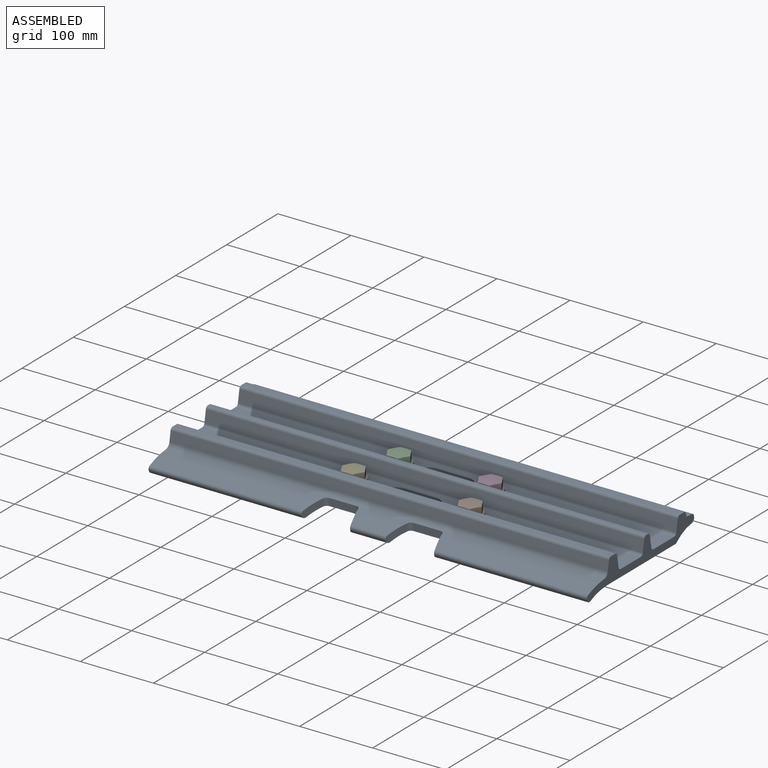
[diagram: assembled view]
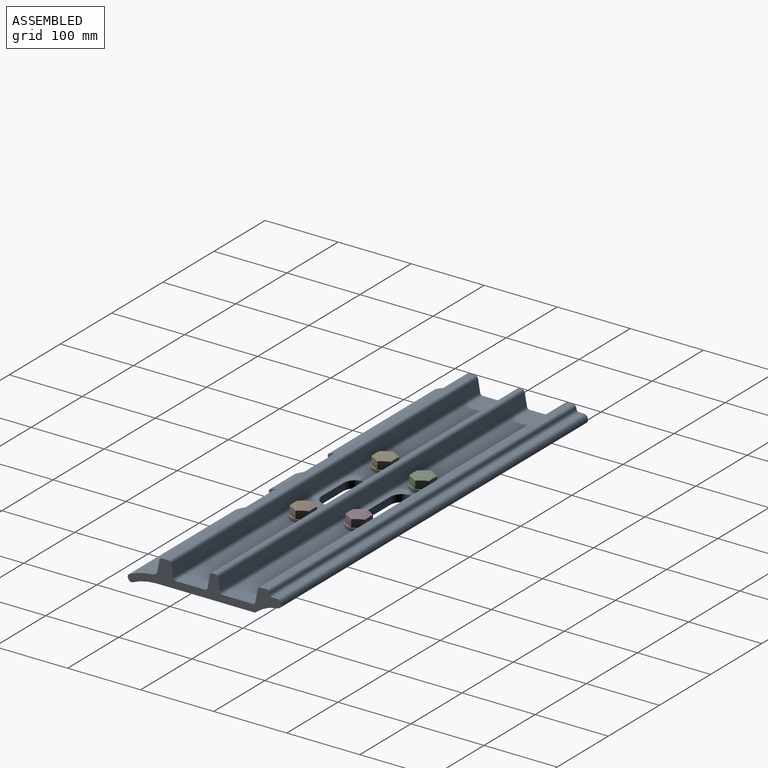
[diagram: assembled view, second angle]
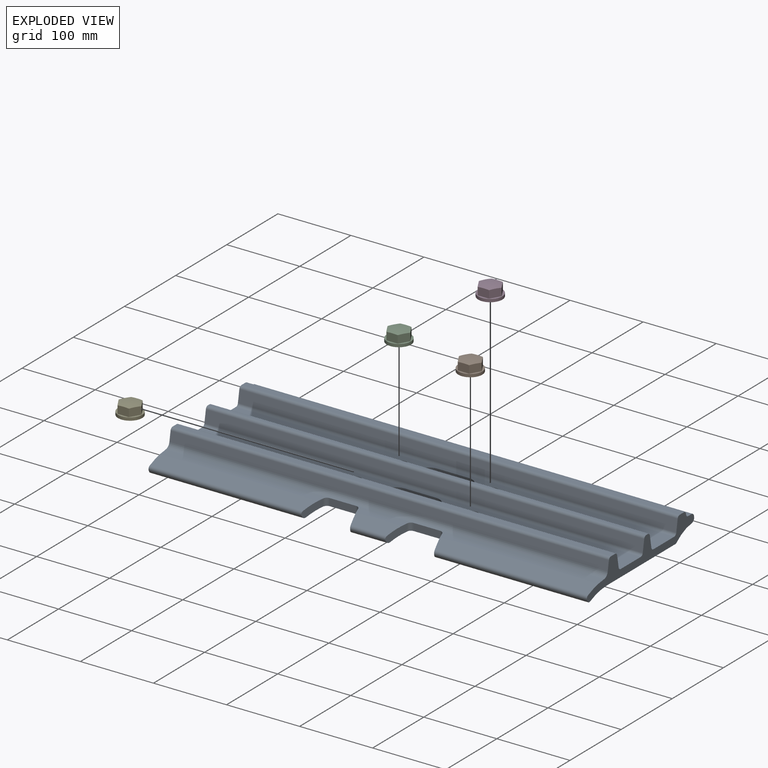
[diagram: exploded view]
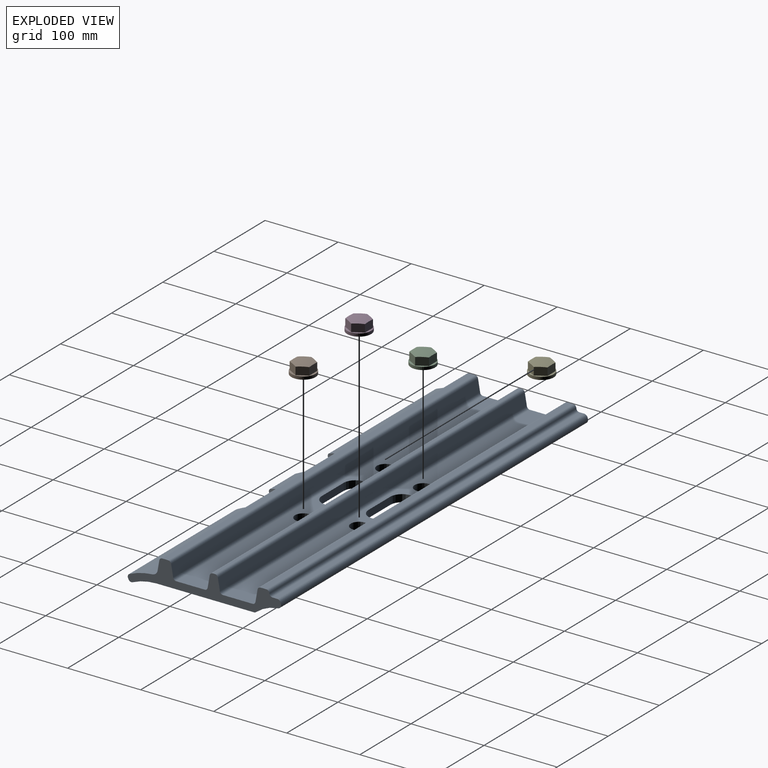
[diagram: exploded view, second angle]
ASSEMBLY  parts=5 mates=3
PART A: 67 faces, bbox 600x209.9x40.6 mm
  f0: cylinder r=90mm len=224.36mm, axis (-1,0,0), area 6968.3mm2, adj f4,f26,f28,f60,f63
  f1: cylinder r=90mm len=224.36mm, axis (-1,0,0), area 6968.3mm2, adj f5,f27,f28,f56,f62
  f2: plane 209.5x1.78mm, normal (0,-0.89,-0.46), area 419.2mm2, adj f4,f6,f26,f60
  f3: plane 209.5x1.78mm, normal (0,-0.89,-0.46), area 419.2mm2, adj f5,f7,f27,f56
  f4: cylinder r=4mm len=209.82mm, axis (-1,0,0), area 1353.7mm2, adj f0,f2,f26,f60
  f5: cylinder r=4mm len=209.82mm, axis (-1,0,0), area 1353.7mm2, adj f1,f3,f27,f56
  f6: cylinder r=4mm len=211.2mm, axis (-1,0,0), area 1281.1mm2, adj f2,f19,f26,f60
  f7: cylinder r=4mm len=211.2mm, axis (-1,0,0), area 1281.1mm2, adj f3,f19,f27,f56
  f8: plane 600x16.37mm, normal (0,-0.99,0.17), area 9969.9mm2, adj f26,f27,f29,f42
  f9: plane 600x40.73mm, normal (0,0,1), area 21429.1mm2, adj f26,f27,f29,f30,f45,f46,f49,f50
  f10: plane 600x16.37mm, normal (0,0.99,0.17), area 9969.9mm2, adj f26,f27,f30,f31
  f11: plane 600x3.27mm, normal (0,0,1), area 1962.7mm2, adj f26,f27,f31,f32
  f12: plane 600x16.37mm, normal (0,-0.99,0.17), area 9969.9mm2, adj f26,f27,f32,f33
  f13: plane 600x39.27mm, normal (0,0,1), area 20551.5mm2, adj f26,f27,f33,f34,f43,f44,f47,f48
  f14: plane 600x16.37mm, normal (0,0.99,0.17), area 9969.9mm2, adj f26,f27,f34,f35
  f15: plane 600x8.27mm, normal (0,0,1), area 4962.7mm2, adj f26,f27,f35,f36
  f16: plane 600x13.29mm, normal (0,-0.99,0.17), area 8093.8mm2, adj f26,f27,f28,f36
  f17: cylinder r=90mm len=78.71mm, axis (-1,0,0), area 1941.2mm2, adj f28,f37,f57,f59,f61,f64
  f18: plane 49x1.78mm, normal (0,-0.89,-0.46), area 97.5mm2, adj f37,f38,f57,f59
  f19: cylinder r=80mm len=600mm, axis (-1,0,0), area 17545.6mm2, adj f6,f7,f20,f26,f27,f38,f55,f56
  f20: plane 600x133.23mm, normal (0,0,-1), area 73913.1mm2, adj f19,f26,f27,f39,f43,f44,f45,f46
  f21: cylinder r=54.21mm len=600mm, axis (-1,0,0), area 19726.9mm2, adj f26,f27,f39,f65
  f22: plane 600x1.45mm, normal (0,0.98,0.17), area 886.1mm2, adj f26,f27,f65,f66
  f23: plane 600x6.65mm, normal (0,0,1), area 3986.9mm2, adj f26,f27,f40,f66
  f24: plane 600x1.28mm, normal (0,0.99,0.17), area 780.4mm2, adj f26,f27,f40,f41
  f25: plane 600x8.27mm, normal (0,0,1), area 4962.7mm2, adj f26,f27,f41,f42
  f26: plane 209.9x40.59mm, normal (1,0,0), area 3165.5mm2, adj f0,f2,f4,f6,f8,f9,f10,f11
  f27: plane 209.9x40.59mm, normal (-1,0,0), area 3165.5mm2, adj f1,f3,f5,f7,f8,f9,f10,f11
  f28: cylinder r=8mm len=600mm, axis (-1,0,0), area 6381.5mm2, adj f0,f1,f16,f17,f26,f27,f55,f58
  f29: cylinder r=4mm len=600mm, axis (1,0,0), area 3356.7mm2, adj f8,f9,f26,f27
  f30: cylinder r=4mm len=600mm, axis (1,0,0), area 3356.7mm2, adj f9,f10,f26,f27
  f31: cylinder r=4mm len=600mm, axis (-1,0,0), area 3356.7mm2, adj f10,f11,f26,f27
  f32: cylinder r=4mm len=600mm, axis (-1,0,0), area 3356.7mm2, adj f11,f12,f26,f27
  f33: cylinder r=4mm len=600mm, axis (1,0,0), area 3356.7mm2, adj f12,f13,f26,f27
  f34: cylinder r=4mm len=600mm, axis (1,0,0), area 3356.7mm2, adj f13,f14,f26,f27
  f35: cylinder r=4mm len=600mm, axis (-1,0,0), area 3356.7mm2, adj f14,f15,f26,f27
  f36: cylinder r=4mm len=600mm, axis (-1,0,0), area 3356.7mm2, adj f15,f16,f26,f27
  f37: cylinder r=4mm len=49.63mm, axis (-1,0,0), area 313.8mm2, adj f17,f18,f57,f59
  f38: cylinder r=4mm len=52.4mm, axis (-1,0,0), area 307.9mm2, adj f18,f19,f57,f59
  f39: cylinder r=4mm len=600mm, axis (-1,0,0), area 1695.4mm2, adj f20,f21,f26,f27
  f40: cylinder r=4mm len=600mm, axis (1,0,0), area 3356.7mm2, adj f23,f24,f26,f27
  f41: cylinder r=4mm len=600mm, axis (-1,0,0), area 3356.7mm2, adj f24,f25,f26,f27
  f42: cylinder r=4mm len=600mm, axis (-1,0,0), area 3356.7mm2, adj f8,f25,f26,f27
  f43: plane 43x10mm, normal (0,1,0), area 430mm2, adj f13,f20,f47,f48
  f44: plane 43x10mm, normal (0,-1,0), area 430mm2, adj f13,f20,f47,f48
  f45: plane 43x10mm, normal (0,1,0), area 430mm2, adj f9,f20,f49,f50
  f46: plane 43x10mm, normal (0,-1,0), area 430mm2, adj f9,f20,f49,f50
  f47: cylinder r=16mm len=32mm, axis (0,0,1), area 502.7mm2, adj f13,f20,f43,f44
  f48: cylinder r=16mm len=32mm, axis (0,0,-1), area 502.7mm2, adj f13,f20,f43,f44
  f49: cylinder r=16mm len=32mm, axis (0,0,1), area 502.7mm2, adj f9,f20,f45,f46
  f50: cylinder r=16mm len=32mm, axis (0,0,-1), area 502.7mm2, adj f9,f20,f45,f46
  f51: cylinder r=11.5mm len=23mm, axis (0,0,1), area 722.6mm2, adj f9,f20
  f52: cylinder r=11.5mm len=23mm, axis (0,0,1), area 722.6mm2, adj f9,f20
  f53: cylinder r=11.5mm len=23mm, axis (0,0,1), area 722.6mm2, adj f13,f20
  f54: cylinder r=11.5mm len=23mm, axis (0,0,1), area 722.6mm2, adj f13,f20
  f55: plane 36.29x10.03mm, normal (0,-1,0), area 363.9mm2, adj f19,f28,f61,f62
  f56: plane 29.44x16.99mm, normal (0.95,-0.31,0), area 309mm2, adj f1,f3,f5,f7,f19,f62
  f57: plane 29.44x16.99mm, normal (-0.95,-0.31,0), area 309mm2, adj f17,f18,f19,f37,f38,f61
  f58: plane 36.29x10.03mm, normal (0,-1,0), area 363.9mm2, adj f19,f28,f63,f64
  f59: plane 29.44x16.99mm, normal (0.95,-0.31,0), area 309mm2, adj f17,f18,f19,f37,f38,f64
  f60: plane 29.44x16.99mm, normal (-0.95,-0.31,0), area 309mm2, adj f0,f2,f4,f6,f19,f63
  f61: cylinder r=6mm len=10.46mm, axis (0,0,-1), area 75.7mm2, adj f17,f19,f55,f57
  f62: cylinder r=6mm len=10.46mm, axis (0,0,-1), area 75.7mm2, adj f1,f19,f55,f56
  f63: cylinder r=6mm len=10.46mm, axis (0,0,-1), area 75.7mm2, adj f0,f19,f58,f60
  f64: cylinder r=6mm len=10.46mm, axis (0,0,1), area 75.7mm2, adj f17,f19,f58,f59
  f65: cylinder r=5mm len=600mm, axis (-1,0,0), area 4936.2mm2, adj f21,f22,f26,f27
  f66: cylinder r=5mm len=600mm, axis (-1,0,0), area 4188.8mm2, adj f22,f23,f26,f27
PART B: 10 faces, bbox 33x33x16 mm
  f0: plane 13.5x10.85mm, normal (0.87,-0.5,0), area 167.2mm2, adj f1,f5,f7,f9
  f1: plane 13.5x10.85mm, normal (0.87,0.5,0), area 167.2mm2, adj f0,f2,f7,f9
  f2: plane 15.59x10.85mm, normal (0,1,0), area 167.2mm2, adj f1,f3,f7,f9
  f3: plane 13.5x10.85mm, normal (-0.87,0.5,0), area 167.2mm2, adj f2,f4,f7,f9
  f4: plane 13.5x10.85mm, normal (-0.87,-0.5,0), area 167.2mm2, adj f3,f5,f7,f9
  f5: plane 15.59x10.85mm, normal (0,-1,0), area 167.2mm2, adj f0,f4,f7,f9
  f6: cylinder r=16.5mm len=33mm, axis (0,0,-1), area 414.7mm2, adj f7,f8
  f7: plane 33x33mm, normal (0,0,1), area 224mm2, adj f0,f1,f2,f3,f4,f5,f6
  f8: plane 33x33mm, normal (0,0,-1), area 855.3mm2, adj f6
  f9: sphere r=80mm, area 636.4mm2, adj f0,f1,f2,f3,f4,f5
PART C: same geometry as B
PART D: same geometry as B
PART E: same geometry as B
PLACE A t=(-211.11,-125.66,75.86)mm
PLACE B t=(160,0,0)mm
PLACE C t=(17.5,64,0)mm
PLACE D t=(142.5,64,0)mm
PLACE E at identity
MATE fastened D.f6 <-> A.f51  axis (0,0,-1) through (-148.61,-15,85.86)mm
MATE fastened C.f6 <-> A.f52  axis (0,0,-1) through (-273.61,-15,85.86)mm
MATE fastened B.f6 <-> A.f54  axis (0,0,-1) through (-131.11,-79,85.86)mm
